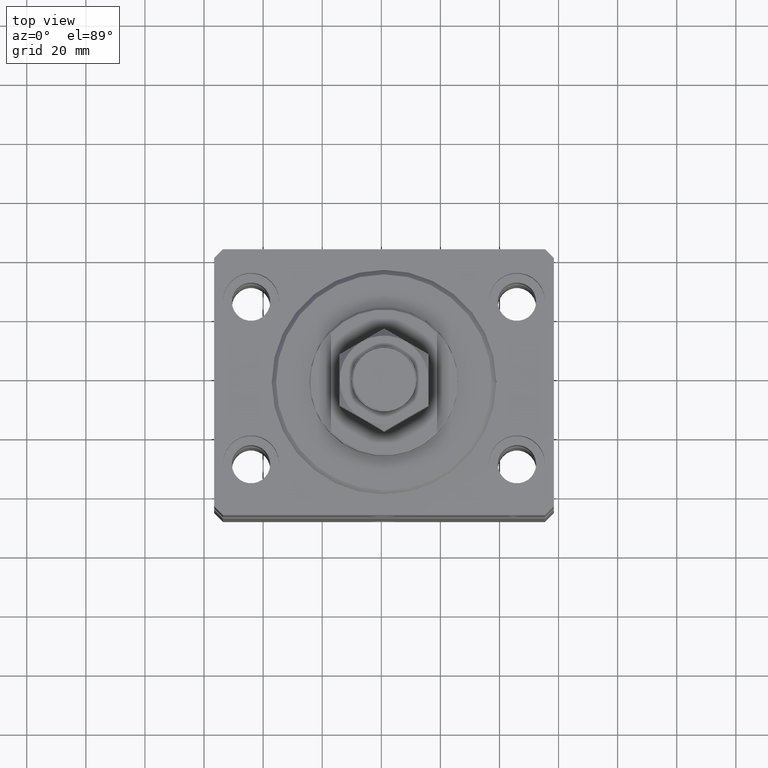
[diagram: clean part render]
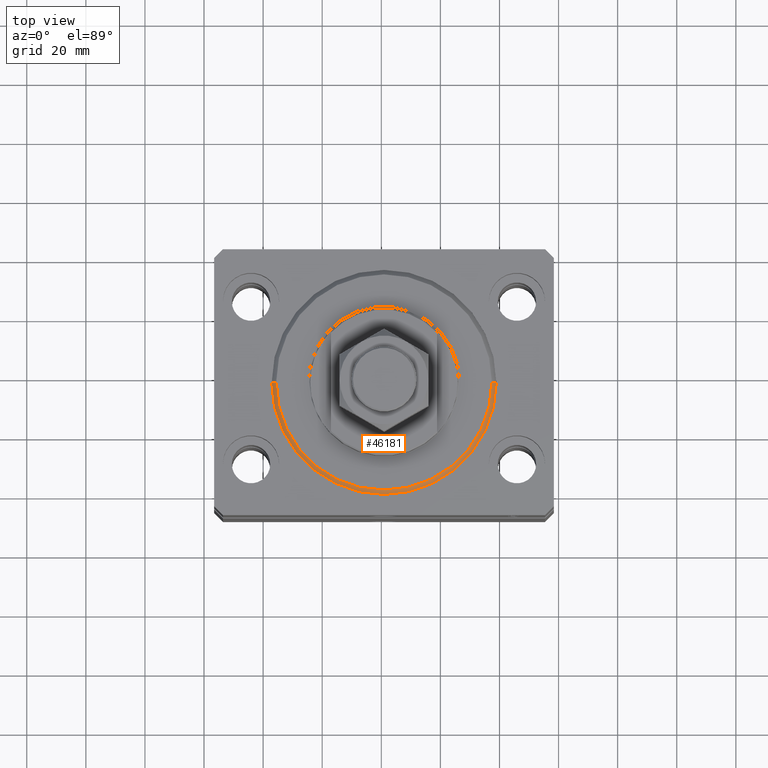
[diagram: same view with one face highlighted and labeled with its STEP entity id]
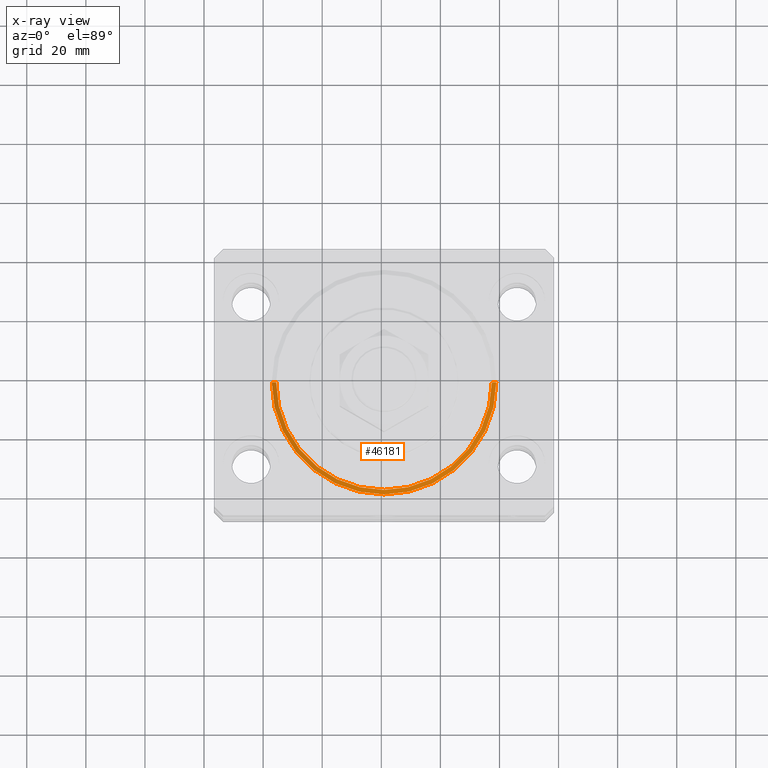
[diagram: x-ray of the same camera — body ghosted, the highlighted face saturated]
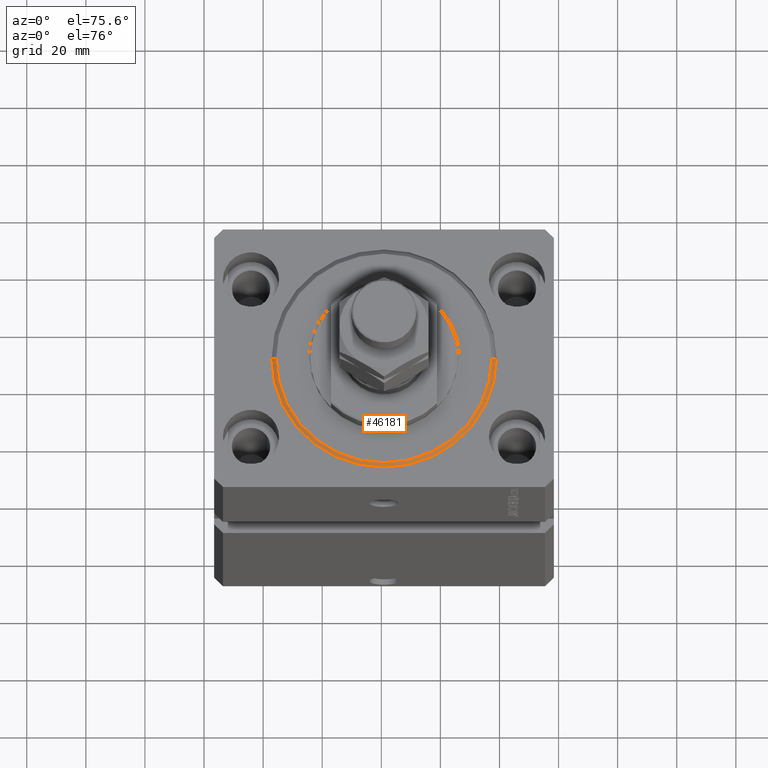
[diagram: same view with one face highlighted and labeled with its STEP entity id]
A machine part, top view. The second image highlights one B-rep face of the part: STEP entity #46181.
The next image is the same camera in x-ray: the body ghosted, the highlighted face saturated — about 0% of this face is hidden behind the body in this view.
A second angle (auxiliary view) of the same face is appended — the face is thin or edge-on in the first view.
In plain terms, the highlighted conical surface has half-angle 45 deg.
Its self-contained STEP definition (entity closure, byte-faithful):
#518 = CARTESIAN_POINT ( 'NONE',  ( 38.00000000000000000, 0.000000000000000000, 1.499999999999987566 ) ) ;
#1707 = CARTESIAN_POINT ( 'NONE',  ( -36.50000000000000000, 4.561809326823889791E-15, 0.000000000000000000 ) ) ;
#1890 = EDGE_CURVE ( 'NONE', #2274, #15636, #6401, .T. ) ;
#2274 = VERTEX_POINT ( 'NONE', #38182 ) ;
#3013 = DIRECTION ( 'NONE',  ( -0.000000000000000000, -0.000000000000000000, 1.000000000000000000 ) ) ;
#6401 = CIRCLE ( 'NONE', #17309, 38.00000000000000000 ) ;
#6956 = CARTESIAN_POINT ( 'NONE',  ( 36.50000000000000000, 0.000000000000000000, 0.000000000000000000 ) ) ;
#7300 = CONICAL_SURFACE ( 'NONE', #40736, 38.00000000000000000, 0.7853981633974529419 ) ;
#7325 = DIRECTION ( 'NONE',  ( 0.7071067811865507924, 0.000000000000000000, 0.7071067811865441310 ) ) ;
#7704 = VECTOR ( 'NONE', #12262, 1000.000000000000114 ) ;
#8071 = LINE ( 'NONE', #518, #17925 ) ;
#12262 = DIRECTION ( 'NONE',  ( -0.7071067811865507924, 8.659560562354972301E-17, 0.7071067811865441310 ) ) ;
#12596 = CARTESIAN_POINT ( 'NONE',  ( 38.00000000000000000, 4.653657836759941941E-15, 1.499999999999987566 ) ) ;
#13496 = FACE_OUTER_BOUND ( 'NONE', #21024, .T. ) ;
#15210 = DIRECTION ( 'NONE',  ( 1.000000000000000000, 0.000000000000000000, 0.000000000000000000 ) ) ;
#15636 = VERTEX_POINT ( 'NONE', #12596 ) ;
#16834 = DIRECTION ( 'NONE',  ( 1.000000000000000000, 0.000000000000000000, 0.000000000000000000 ) ) ;
#17309 = AXIS2_PLACEMENT_3D ( 'NONE', #19804, #34856, #16834 ) ;
#17515 = DIRECTION ( 'NONE',  ( 1.000000000000000000, 0.000000000000000000, 0.000000000000000000 ) ) ;
#17925 = VECTOR ( 'NONE', #7325, 1000.000000000000114 ) ;
#18250 = VERTEX_POINT ( 'NONE', #1707 ) ;
#19804 = CARTESIAN_POINT ( 'NONE',  ( 0.000000000000000000, 0.000000000000000000, 1.499999999999987566 ) ) ;
#21024 = EDGE_LOOP ( 'NONE', ( #26892, #29210, #21410, #46729 ) ) ;
#21410 = ORIENTED_EDGE ( 'NONE', *, *, #36316, .T. ) ;
#21435 = EDGE_CURVE ( 'NONE', #18250, #2274, #30773, .T. ) ;
#24386 = VERTEX_POINT ( 'NONE', #6956 ) ;
#26892 = ORIENTED_EDGE ( 'NONE', *, *, #21435, .F. ) ;
#28690 = CARTESIAN_POINT ( 'NONE',  ( 0.000000000000000000, 0.000000000000000000, 0.000000000000000000 ) ) ;
#29210 = ORIENTED_EDGE ( 'NONE', *, *, #35373, .F. ) ;
#30773 = LINE ( 'NONE', #45630, #7704 ) ;
#34232 = CIRCLE ( 'NONE', #48167, 36.50000000000000000 ) ;
#34856 = DIRECTION ( 'NONE',  ( -0.000000000000000000, -0.000000000000000000, 1.000000000000000000 ) ) ;
#35373 = EDGE_CURVE ( 'NONE', #24386, #18250, #34232, .T. ) ;
#36316 = EDGE_CURVE ( 'NONE', #24386, #15636, #8071, .T. ) ;
#36368 = CARTESIAN_POINT ( 'NONE',  ( 0.000000000000000000, 0.000000000000000000, 1.499999999999987566 ) ) ;
#38182 = CARTESIAN_POINT ( 'NONE',  ( -38.00000000000000000, 0.000000000000000000, 1.499999999999987566 ) ) ;
#40736 = AXIS2_PLACEMENT_3D ( 'NONE', #36368, #3013, #15210 ) ;
#44693 = DIRECTION ( 'NONE',  ( -0.000000000000000000, -0.000000000000000000, -1.000000000000000000 ) ) ;
#45630 = CARTESIAN_POINT ( 'NONE',  ( -38.00000000000000000, 4.653657836759941152E-15, 1.499999999999987566 ) ) ;
#46181 = ADVANCED_FACE ( 'NONE', ( #13496 ), #7300, .T. ) ;
#46729 = ORIENTED_EDGE ( 'NONE', *, *, #1890, .F. ) ;
#48167 = AXIS2_PLACEMENT_3D ( 'NONE', #28690, #44693, #17515 ) ;